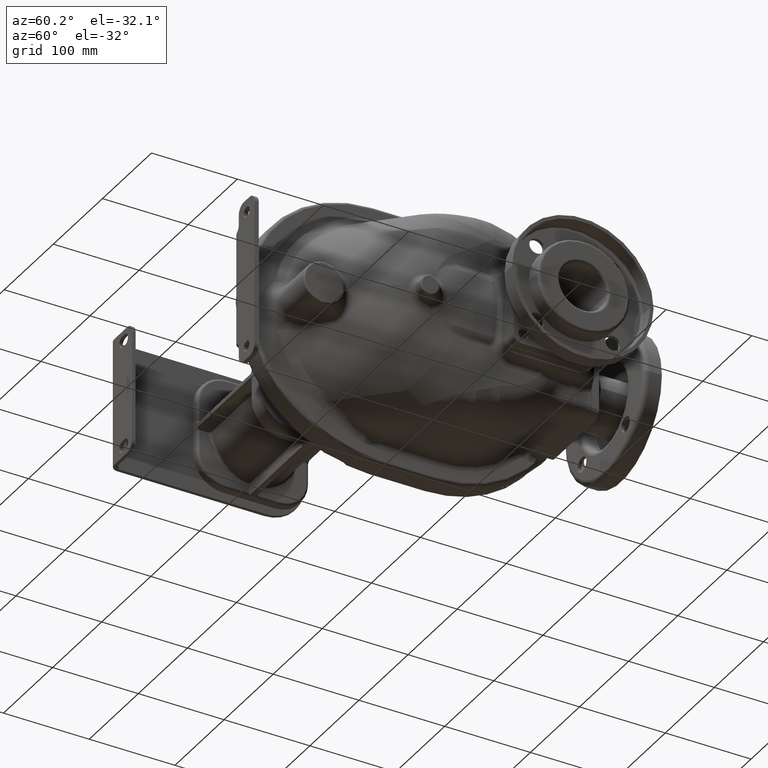
[diagram: clean part render]
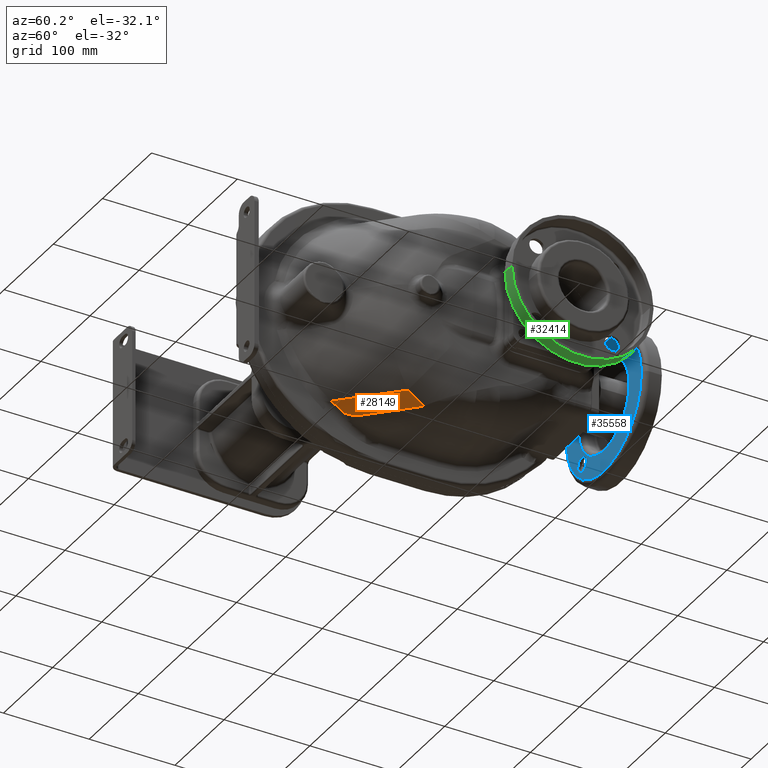
[diagram: same view with three faces highlighted in distinct colors, each labeled with its STEP entity id]
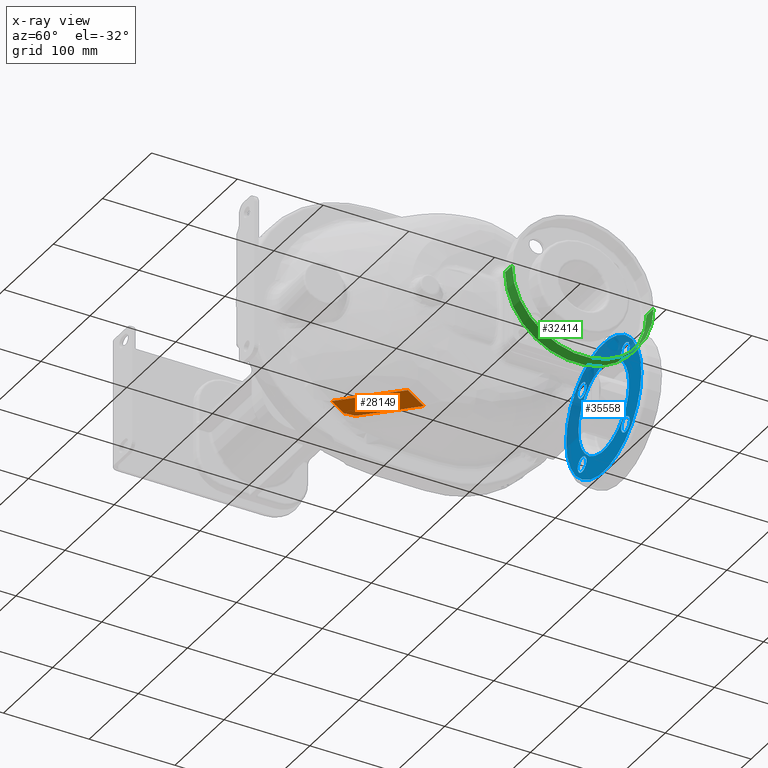
[diagram: x-ray of the same camera — body ghosted, the three highlighted faces saturated]
A machine part, auxiliary view with three faces highlighted in distinct colors.
The next image is the same camera in x-ray (body ghosted, the three faces saturated) — at least one of them is partly hidden behind the body in this view.
Their STEP definitions:

[orange] entity #28149 — the highlighted planar face has unit normal (0.5, -0.5, -0.7071).
#2593=CARTESIAN_POINT('',(-7.5E0,-4.236546770968E1,-1.195972305969E2));
#2595=DIRECTION('',(-1.345701758579E-7,-8.164964463557E-1,5.773504595031E-1));
#2596=VECTOR('',#2595,1.746888980394E1);
#2597=CARTESIAN_POINT('',(-7.500000000027E0,-4.236546772002E1,
-1.195972305896E2));
#2598=LINE('',#2597,#2596);
#2599=DIRECTION('',(-8.500805394891E-13,8.164965809274E-1,-5.773502691900E-1));
#2600=VECTOR('',#2599,2.292745961884E1);
#2601=CARTESIAN_POINT('',(4.9E1,-1.287565176259E-1,-1.095115623588E2));
#2602=LINE('',#2601,#2600);
#2603=DIRECTION('',(7.071067856894E-1,7.071067766837E-1,-6.368105824561E-9));
#2604=VECTOR('',#2603,7.138890123450E1);
#2605=CARTESIAN_POINT('',(-1.479576485841E0,-3.188813997241E1,
-1.227487368869E2));
#2606=LINE('',#2605,#2604);
#2607=CARTESIAN_POINT('',(-1.479576485841E0,-3.188813997241E1,
-1.227487368869E2));
#2608=CARTESIAN_POINT('',(-1.779906540663E0,-3.234641421743E1,
-1.226370534790E2));
#2609=CARTESIAN_POINT('',(-2.366816422894E0,-3.325639002403E1,
-1.224086127043E2));
#2610=CARTESIAN_POINT('',(-3.206791180967E0,-3.460145627512E1,
-1.220514585494E2));
#2611=CARTESIAN_POINT('',(-4.006847333560E0,-3.592590237598E1,
-1.216806590044E2));
#2612=CARTESIAN_POINT('',(-4.767724466889E0,-3.722936967080E1,
-1.212969897834E2));
#2613=CARTESIAN_POINT('',(-5.489932044334E0,-3.851090027206E1,
-1.209014886906E2));
#2614=CARTESIAN_POINT('',(-6.181782243456E0,-3.978408009930E1,
-1.204904265657E2));
#2615=CARTESIAN_POINT('',(-6.849914210906E0,-4.106142319135E1,
-1.200596492491E2));
#2616=CARTESIAN_POINT('',(-7.285497017088E0,-4.192882976381E1,
-1.197543037355E2));
#2617=CARTESIAN_POINT('',(-7.500000000027E0,-4.236546772002E1,
-1.195972305896E2));
#3502=DIRECTION('',(-7.071068106080E-1,-7.071067517651E-1,4.160645979085E-8));
#3503=VECTOR('',#3502,7.990306627401E1);
#3504=CARTESIAN_POINT('',(4.9E1,-1.287565176259E-1,-1.095115623588E2));
#3505=LINE('',#3504,#3503);
#9530=CARTESIAN_POINT('',(-1.479576485841E0,-3.188813997241E1,
-1.227487368869E2));
#22201=CARTESIAN_POINT('',(4.9E1,-1.287565176259E-1,-1.095115623588E2));
#22202=CARTESIAN_POINT('',(4.899999999998E1,1.859143587051E1,
-1.227487373415E2));
#22203=VERTEX_POINT('',#22201);
#22204=VERTEX_POINT('',#22202);
#22441=VERTEX_POINT('',#9530);
#22523=VERTEX_POINT('',#2593);
#22525=CARTESIAN_POINT('',(-7.500002350819E0,-5.662875416671E1,
-1.095115590343E2));
#22526=VERTEX_POINT('',#22525);
#28133=CARTESIAN_POINT('',(-5.054958277186E1,-9.967833928949E1,
-1.095115623587E2));
#28134=DIRECTION('',(5.E-1,-5.E-1,-7.071067811865E-1));
#28135=DIRECTION('',(-5.E-1,5.E-1,-7.071067811865E-1));
#28136=AXIS2_PLACEMENT_3D('',#28133,#28134,#28135);
#28137=PLANE('',#28136);
#28139=ORIENTED_EDGE('',*,*,#28138,.T.);
#28141=ORIENTED_EDGE('',*,*,#28140,.F.);
#28143=ORIENTED_EDGE('',*,*,#28142,.T.);
#28145=ORIENTED_EDGE('',*,*,#28144,.F.);
#28146=ORIENTED_EDGE('',*,*,#28120,.T.);
#28147=EDGE_LOOP('',(#28139,#28141,#28143,#28145,#28146));
#28148=FACE_OUTER_BOUND('',#28147,.F.);
#2618=B_SPLINE_CURVE_WITH_KNOTS('',3,(#2607,#2608,#2609,#2610,#2611,#2612,#2613,
#2614,#2615,#2616,#2617),.UNSPECIFIED.,.F.,.F.,(4,1,1,1,1,1,1,1,4),(0.E0,
1.25E-1,2.5E-1,3.75E-1,5.E-1,6.25E-1,7.5E-1,8.75E-1,1.E0),.UNSPECIFIED.);
#28120=EDGE_CURVE('',#22441,#22523,#2618,.T.);
#28138=EDGE_CURVE('',#22523,#22526,#2598,.T.);
#28140=EDGE_CURVE('',#22203,#22526,#3505,.T.);
#28142=EDGE_CURVE('',#22203,#22204,#2602,.T.);
#28144=EDGE_CURVE('',#22441,#22204,#2606,.T.);
#28149=ADVANCED_FACE('',(#28148),#28137,.T.);

[blue] entity #35558 — the highlighted planar face has unit normal (0, 1, 0).
#7860=CARTESIAN_POINT('',(2.7E1,2.41E2,-4.3E1));
#7861=DIRECTION('',(0.E0,-1.E0,0.E0));
#7862=DIRECTION('',(-1.E0,0.E0,0.E0));
#7863=AXIS2_PLACEMENT_3D('',#7860,#7861,#7862);
#7865=CARTESIAN_POINT('',(2.7E1,2.41E2,-4.3E1));
#7866=DIRECTION('',(0.E0,1.E0,0.E0));
#7867=DIRECTION('',(-1.E0,0.E0,0.E0));
#7868=AXIS2_PLACEMENT_3D('',#7865,#7866,#7867);
#7870=CARTESIAN_POINT('',(2.7E1,2.41E2,-4.3E1));
#7871=DIRECTION('',(0.E0,-1.E0,0.E0));
#7872=DIRECTION('',(-1.E0,0.E0,0.E0));
#7873=AXIS2_PLACEMENT_3D('',#7870,#7871,#7872);
#7875=CARTESIAN_POINT('',(2.7E1,2.41E2,-4.3E1));
#7876=DIRECTION('',(0.E0,1.E0,0.E0));
#7877=DIRECTION('',(-1.E0,0.E0,0.E0));
#7878=AXIS2_PLACEMENT_3D('',#7875,#7876,#7877);
#7880=CARTESIAN_POINT('',(7.119417382416E1,2.41E2,-8.719417382416E1));
#7881=DIRECTION('',(0.E0,-1.E0,0.E0));
#7882=DIRECTION('',(0.E0,0.E0,1.E0));
#7883=AXIS2_PLACEMENT_3D('',#7880,#7881,#7882);
#7885=CARTESIAN_POINT('',(7.119417382416E1,2.41E2,-8.719417382416E1));
#7886=DIRECTION('',(0.E0,-1.E0,0.E0));
#7887=DIRECTION('',(0.E0,0.E0,-1.E0));
#7888=AXIS2_PLACEMENT_3D('',#7885,#7886,#7887);
#7890=CARTESIAN_POINT('',(-1.719417382416E1,2.41E2,-8.719417382416E1));
#7891=DIRECTION('',(0.E0,-1.E0,0.E0));
#7892=DIRECTION('',(1.E0,0.E0,0.E0));
#7893=AXIS2_PLACEMENT_3D('',#7890,#7891,#7892);
#7895=CARTESIAN_POINT('',(-1.719417382416E1,2.41E2,-8.719417382416E1));
#7896=DIRECTION('',(0.E0,-1.E0,0.E0));
#7897=DIRECTION('',(-1.E0,0.E0,0.E0));
#7898=AXIS2_PLACEMENT_3D('',#7895,#7896,#7897);
#7900=CARTESIAN_POINT('',(-1.719417382416E1,2.41E2,1.194173824159E0));
#7901=DIRECTION('',(0.E0,-1.E0,0.E0));
#7902=DIRECTION('',(0.E0,0.E0,-1.E0));
#7903=AXIS2_PLACEMENT_3D('',#7900,#7901,#7902);
#7905=CARTESIAN_POINT('',(-1.719417382416E1,2.41E2,1.194173824159E0));
#7906=DIRECTION('',(0.E0,-1.E0,0.E0));
#7907=DIRECTION('',(0.E0,0.E0,1.E0));
#7908=AXIS2_PLACEMENT_3D('',#7905,#7906,#7907);
#7910=CARTESIAN_POINT('',(7.119417382416E1,2.41E2,1.194173824159E0));
#7911=DIRECTION('',(0.E0,-1.E0,0.E0));
#7912=DIRECTION('',(-1.E0,0.E0,0.E0));
#7913=AXIS2_PLACEMENT_3D('',#7910,#7911,#7912);
#7915=CARTESIAN_POINT('',(7.119417382416E1,2.41E2,1.194173824159E0));
#7916=DIRECTION('',(0.E0,-1.E0,0.E0));
#7917=DIRECTION('',(1.E0,0.E0,0.E0));
#7918=AXIS2_PLACEMENT_3D('',#7915,#7916,#7917);
#23361=CARTESIAN_POINT('',(-4.95E1,2.41E2,-4.3E1));
#23362=VERTEX_POINT('',#23361);
#23363=CARTESIAN_POINT('',(-2.45E1,2.41E2,-4.3E1));
#23365=VERTEX_POINT('',#23363);
#23381=CARTESIAN_POINT('',(1.035E2,2.41E2,-4.3E1));
#23382=VERTEX_POINT('',#23381);
#23383=CARTESIAN_POINT('',(7.85E1,2.41E2,-4.3E1));
#23385=VERTEX_POINT('',#23383);
#23409=CARTESIAN_POINT('',(7.119417382416E1,2.41E2,-7.844417382416E1));
#23410=CARTESIAN_POINT('',(7.119417382416E1,2.41E2,-9.594417382416E1));
#23411=VERTEX_POINT('',#23409);
#23412=VERTEX_POINT('',#23410);
#23419=CARTESIAN_POINT('',(-8.444173824159E0,2.41E2,-8.719417382416E1));
#23420=CARTESIAN_POINT('',(-2.594417382416E1,2.41E2,-8.719417382416E1));
#23421=VERTEX_POINT('',#23419);
#23422=VERTEX_POINT('',#23420);
#23429=CARTESIAN_POINT('',(-1.719417382416E1,2.41E2,-7.555826175841E0));
#23430=CARTESIAN_POINT('',(-1.719417382416E1,2.41E2,9.944173824159E0));
#23431=VERTEX_POINT('',#23429);
#23432=VERTEX_POINT('',#23430);
#23439=CARTESIAN_POINT('',(6.244417382416E1,2.41E2,1.194173824159E0));
#23440=CARTESIAN_POINT('',(7.994417382416E1,2.41E2,1.194173824159E0));
#23441=VERTEX_POINT('',#23439);
#23442=VERTEX_POINT('',#23440);
#35519=CARTESIAN_POINT('',(2.7E1,2.41E2,-4.3E1));
#35520=DIRECTION('',(0.E0,1.E0,0.E0));
#35521=DIRECTION('',(1.E0,0.E0,0.E0));
#35522=AXIS2_PLACEMENT_3D('',#35519,#35520,#35521);
#35523=PLANE('',#35522);
#35525=ORIENTED_EDGE('',*,*,#35524,.F.);
#35527=ORIENTED_EDGE('',*,*,#35526,.T.);
#35528=EDGE_LOOP('',(#35525,#35527));
#35529=FACE_OUTER_BOUND('',#35528,.F.);
#35530=ORIENTED_EDGE('',*,*,#35505,.F.);
#35531=ORIENTED_EDGE('',*,*,#35487,.T.);
#35532=EDGE_LOOP('',(#35530,#35531));
#35533=FACE_BOUND('',#35532,.F.);
#35535=ORIENTED_EDGE('',*,*,#35534,.T.);
#35537=ORIENTED_EDGE('',*,*,#35536,.T.);
#35538=EDGE_LOOP('',(#35535,#35537));
#35539=FACE_BOUND('',#35538,.F.);
#35541=ORIENTED_EDGE('',*,*,#35540,.T.);
#35543=ORIENTED_EDGE('',*,*,#35542,.T.);
#35544=EDGE_LOOP('',(#35541,#35543));
#35545=FACE_BOUND('',#35544,.F.);
#35547=ORIENTED_EDGE('',*,*,#35546,.T.);
#35549=ORIENTED_EDGE('',*,*,#35548,.T.);
#35550=EDGE_LOOP('',(#35547,#35549));
#35551=FACE_BOUND('',#35550,.F.);
#35553=ORIENTED_EDGE('',*,*,#35552,.T.);
#35555=ORIENTED_EDGE('',*,*,#35554,.T.);
#35556=EDGE_LOOP('',(#35553,#35555));
#35557=FACE_BOUND('',#35556,.F.);
#7864=CIRCLE('',#7863,5.15E1);
#7869=CIRCLE('',#7868,5.15E1);
#7874=CIRCLE('',#7873,7.65E1);
#7879=CIRCLE('',#7878,7.65E1);
#7884=CIRCLE('',#7883,8.75E0);
#7889=CIRCLE('',#7888,8.75E0);
#7894=CIRCLE('',#7893,8.75E0);
#7899=CIRCLE('',#7898,8.75E0);
#7904=CIRCLE('',#7903,8.75E0);
#7909=CIRCLE('',#7908,8.75E0);
#7914=CIRCLE('',#7913,8.75E0);
#7919=CIRCLE('',#7918,8.75E0);
#35487=EDGE_CURVE('',#23365,#23385,#7864,.T.);
#35505=EDGE_CURVE('',#23365,#23385,#7869,.T.);
#35524=EDGE_CURVE('',#23362,#23382,#7874,.T.);
#35526=EDGE_CURVE('',#23362,#23382,#7879,.T.);
#35534=EDGE_CURVE('',#23411,#23412,#7884,.T.);
#35536=EDGE_CURVE('',#23412,#23411,#7889,.T.);
#35540=EDGE_CURVE('',#23421,#23422,#7894,.T.);
#35542=EDGE_CURVE('',#23422,#23421,#7899,.T.);
#35546=EDGE_CURVE('',#23431,#23432,#7904,.T.);
#35548=EDGE_CURVE('',#23432,#23431,#7909,.T.);
#35552=EDGE_CURVE('',#23441,#23442,#7914,.T.);
#35554=EDGE_CURVE('',#23442,#23441,#7919,.T.);
#35558=ADVANCED_FACE('',(#35529,#35533,#35539,#35545,#35551,#35557),#35523,.F.);

[green] entity #32414 — the highlighted cylindrical surface (partial cylindrical patch) has radius 82.5 mm, axis along (1, 0, 0).
#5777=CARTESIAN_POINT('',(1.55E2,1.35E2,-1.E1));
#5778=DIRECTION('',(1.E0,0.E0,0.E0));
#5779=DIRECTION('',(0.E0,-1.E0,0.E0));
#5780=AXIS2_PLACEMENT_3D('',#5777,#5778,#5779);
#5782=CARTESIAN_POINT('',(1.695E2,1.35E2,-1.E1));
#5783=DIRECTION('',(1.E0,0.E0,0.E0));
#5784=DIRECTION('',(0.E0,-1.E0,0.E0));
#5785=AXIS2_PLACEMENT_3D('',#5782,#5783,#5784);
#5787=DIRECTION('',(-1.E0,0.E0,0.E0));
#5788=VECTOR('',#5787,1.45E1);
#5789=CARTESIAN_POINT('',(1.695E2,5.25E1,-1.E1));
#5790=LINE('',#5789,#5788);
#5791=DIRECTION('',(-1.E0,0.E0,0.E0));
#5792=VECTOR('',#5791,1.45E1);
#5793=CARTESIAN_POINT('',(1.695E2,2.175E2,-1.E1));
#5794=LINE('',#5793,#5792);
#23577=CARTESIAN_POINT('',(1.695E2,5.25E1,-1.E1));
#23578=CARTESIAN_POINT('',(1.55E2,5.25E1,-1.E1));
#23579=VERTEX_POINT('',#23577);
#23580=VERTEX_POINT('',#23578);
#23597=CARTESIAN_POINT('',(1.695E2,2.175E2,-1.E1));
#23598=CARTESIAN_POINT('',(1.55E2,2.175E2,-1.E1));
#23599=VERTEX_POINT('',#23597);
#23600=VERTEX_POINT('',#23598);
#32400=CARTESIAN_POINT('',(1.28E2,1.35E2,-1.E1));
#32401=DIRECTION('',(1.E0,0.E0,0.E0));
#32402=DIRECTION('',(0.E0,1.E0,0.E0));
#32403=AXIS2_PLACEMENT_3D('',#32400,#32401,#32402);
#32404=CYLINDRICAL_SURFACE('',#32403,8.25E1);
#32406=ORIENTED_EDGE('',*,*,#32405,.F.);
#32408=ORIENTED_EDGE('',*,*,#32407,.T.);
#32410=ORIENTED_EDGE('',*,*,#32409,.T.);
#32411=ORIENTED_EDGE('',*,*,#32386,.F.);
#32412=EDGE_LOOP('',(#32406,#32408,#32410,#32411));
#32413=FACE_OUTER_BOUND('',#32412,.F.);
#5781=CIRCLE('',#5780,8.25E1);
#5786=CIRCLE('',#5785,8.25E1);
#32386=EDGE_CURVE('',#23580,#23600,#5781,.T.);
#32405=EDGE_CURVE('',#23579,#23580,#5790,.T.);
#32407=EDGE_CURVE('',#23579,#23599,#5786,.T.);
#32409=EDGE_CURVE('',#23599,#23600,#5794,.T.);
#32414=ADVANCED_FACE('',(#32413),#32404,.T.);